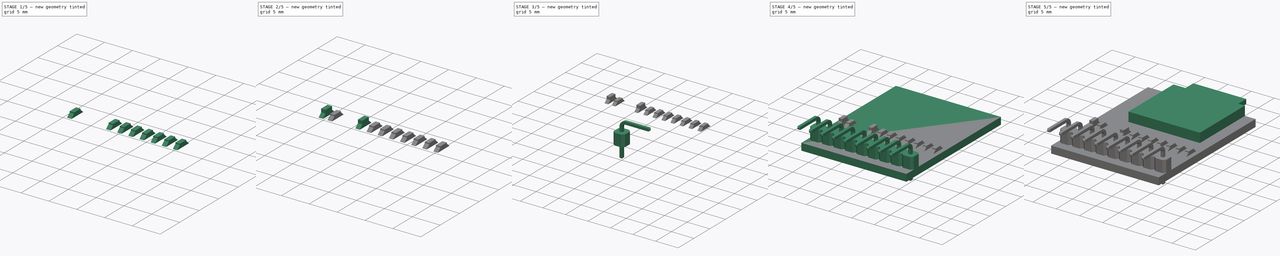
[diagram: build sequence overview — one tinted view per stage of 5, left to right]
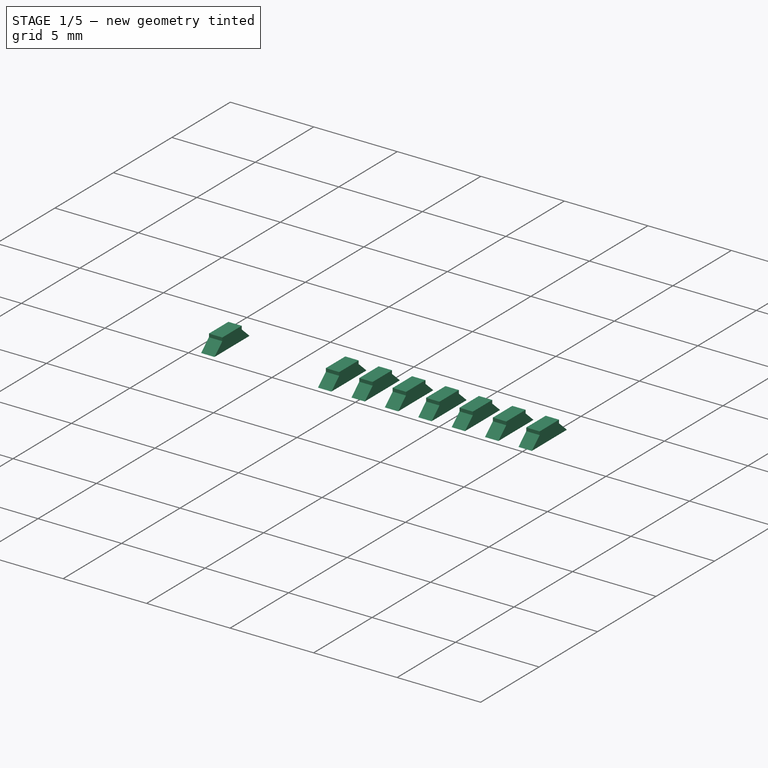
[diagram: stage 1 of 5 — iso view after this stage's code; geometry added in this stage tinted green]
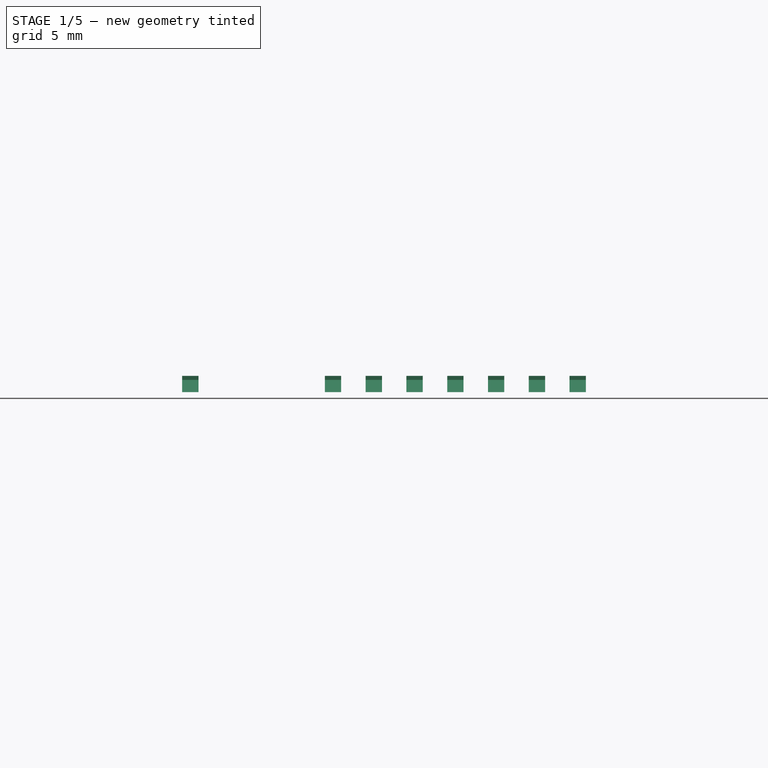
[diagram: stage 1 of 5 — front view after this stage's code; geometry added in this stage tinted green]
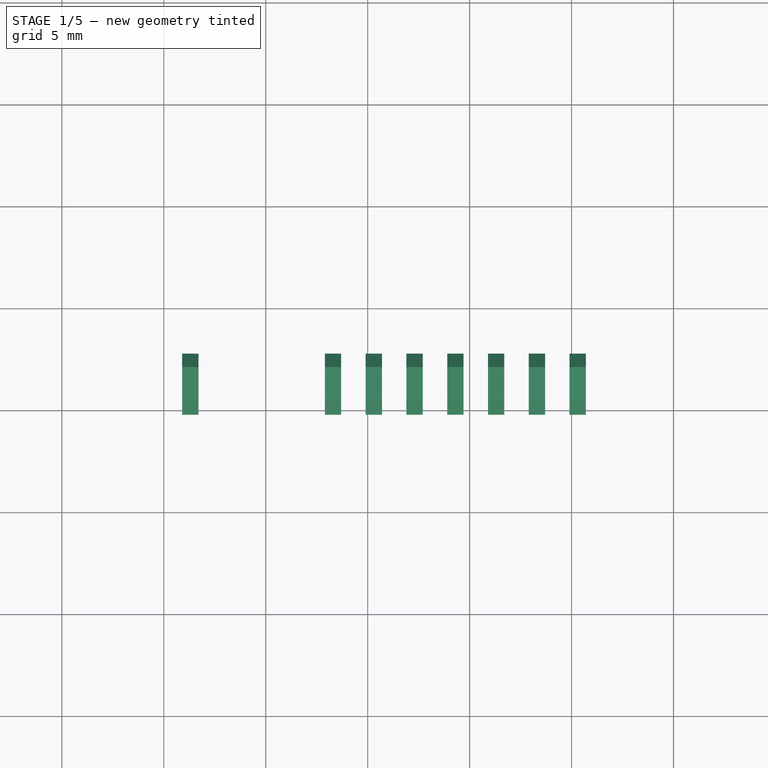
[diagram: stage 1 of 5 — top view after this stage's code; geometry added in this stage tinted green]
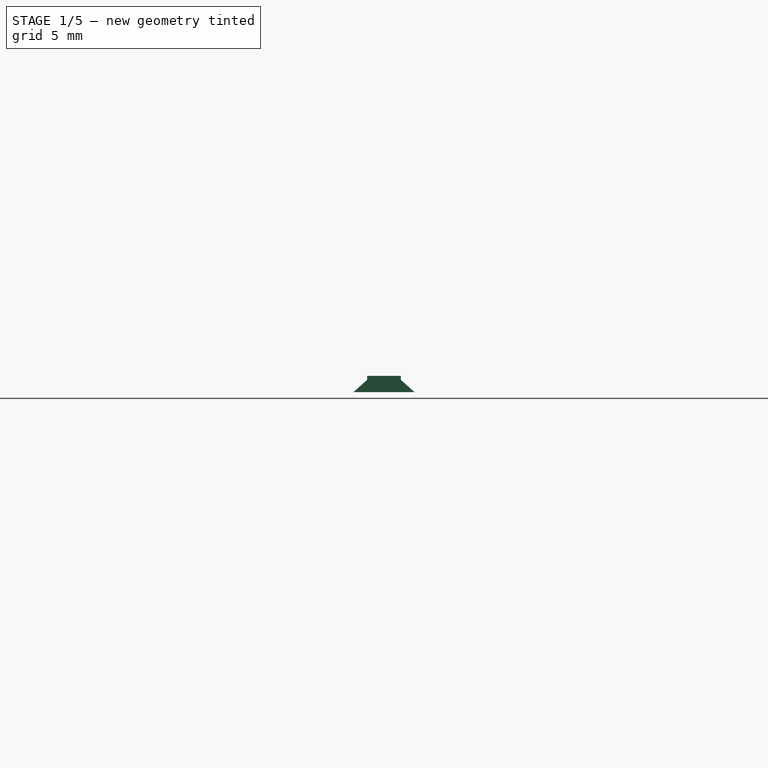
[diagram: stage 1 of 5 — right view after this stage's code; geometry added in this stage tinted green]
FCSTD DOCUMENT  (FreeCAD 0.16RUnknown)
Label: WaveShareSD
License: All rights reserved
LicenseURL: http://en.wikipedia.org/wiki/All_rights_reserved
objects: Sketcher::SketchObject×9, Part::FeaturePython×8, PartDesign::Pad×7, App::DocumentObjectGroup×6, Part::Chamfer×2, Part::MultiFuse×2, Spreadsheet::Sheet×1, Part::Sweep×1
note: 36 computed .brp shape members not serialized (recipe doc carries the construction recipe); baked Part::Feature solids carry a one-line shape summary decoded from their .brp

FEATURE [App::DocumentObjectGroup] Group002  label="Pins_src"
  Group = -> [Sketch,Pad,Sketch002,Sweep,Fusion,Array]
FEATURE [Sketcher::SketchObject] Sketch003  label="SMDR"
  Placement = pos=(0,0,0) rot=(0.57735,0.57735,0.57735;2.0944rad)
  sketch-geometry (6):
    g0: LineSegment StartX=-1.5 StartY=0 StartZ=0 EndX=1.5 EndY=0 EndZ=0
    g1: LineSegment StartX=1.5 StartY=0 StartZ=0 EndX=0.83 EndY=0.6 EndZ=0
    g2: LineSegment StartX=0.83 StartY=0.6 StartZ=0 EndX=0.83 EndY=0.8 EndZ=0
    g3: LineSegment StartX=0.83 StartY=0.8 StartZ=0 EndX=-0.83 EndY=0.8 EndZ=0
    g4: LineSegment StartX=-0.83 StartY=0.8 StartZ=0 EndX=-0.83 EndY=0.6 EndZ=0
    g5: LineSegment StartX=-0.83 StartY=0.6 StartZ=0 EndX=-1.5 EndY=0 EndZ=0
  constraints (17):
    c: Coincident(g0,g1)
    c: Coincident(g1,g2)
    c: Coincident(g2,g3)
    c: Coincident(g3,g4)
    c: Coincident(g4,g5)
    c: Coincident(g5,g0)
    c: DistanceX(g3,g3) = 1.66
    c: Vertical(g2)
    c: Vertical(g4)
    c: Symmetric(g3,g2,g-2)
    c: Horizontal(g0)
    c: PointOnObject(g0,g-1)
    c: Symmetric(g4,g1,g-2)
    c: Symmetric(g0,g0,g-2)
    c: DistanceX(g0,g0) = 3
    c: DistanceY(g2) = 0.8
    c: DistanceY(g4) = 0.6
FEATURE [PartDesign::Pad] Pad001  label="SMDR001"
  Length = 0.8
  Length2 = 100
  Midplane = true
  Placement = pos=(0,0,0) rot=(0.57735,0.57735,0.57735;2.0944rad)
  Sketch = -> Sketch003
  Type = 0
FEATURE [Part::FeaturePython] Clone003  label="Clone of SMDR001"  # Draft clone (typed FeaturePython)
  Objects = -> [Pad001]
  Placement = pos=(10.3,11.3,1.55) rot=(0.57735,0.57735,0.57735;2.0944rad)
  Scale = (1,1,1)
FEATURE [Part::FeaturePython] Array001  label="Resistors"  # Draft array (typed FeaturePython)
  Angle = 360
  ArrayType = 0
  Axis = (0,0,1)
  Base = -> Clone003
  Center = (0,0,0)
  Fuse = false
  IntervalAxis = (0,0,0)
  IntervalX = (-2,0,0)
  IntervalY = (0,1,0)
  IntervalZ = (0,0,0)
  NumberPolar = 1
  NumberX = 7
  NumberY = 1
  NumberZ = 1
FEATURE [Part::FeaturePython] Clone004  label="Clone of SMDR002"  # Draft clone (typed FeaturePython)
  Objects = -> [Pad001]
  Placement = pos=(-8.7,11.3,1.55) rot=(0.57735,0.57735,0.57735;2.0944rad)
  Scale = (1,1,1)
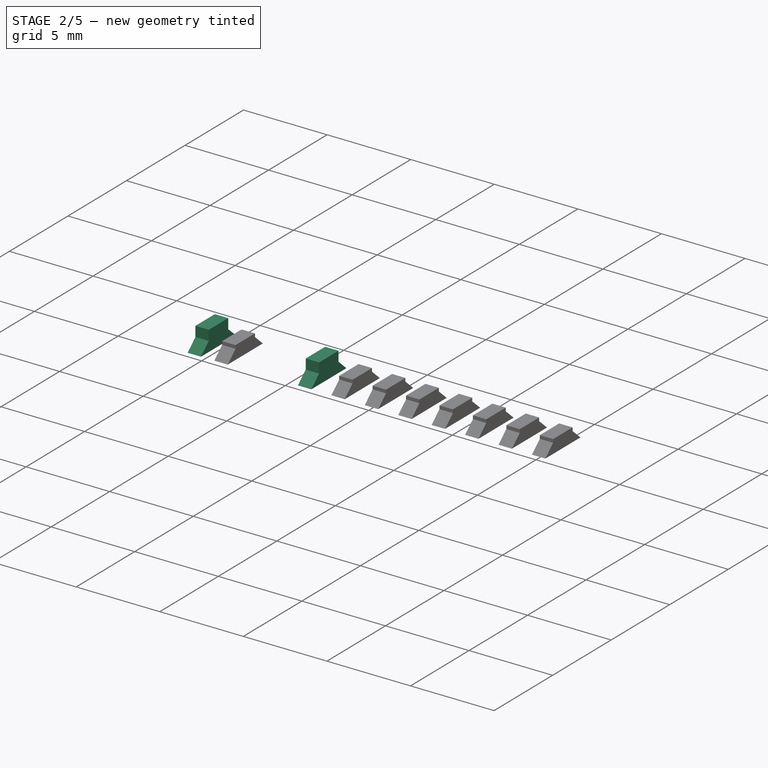
[diagram: stage 2 of 5 — iso view after this stage's code; geometry added in this stage tinted green]
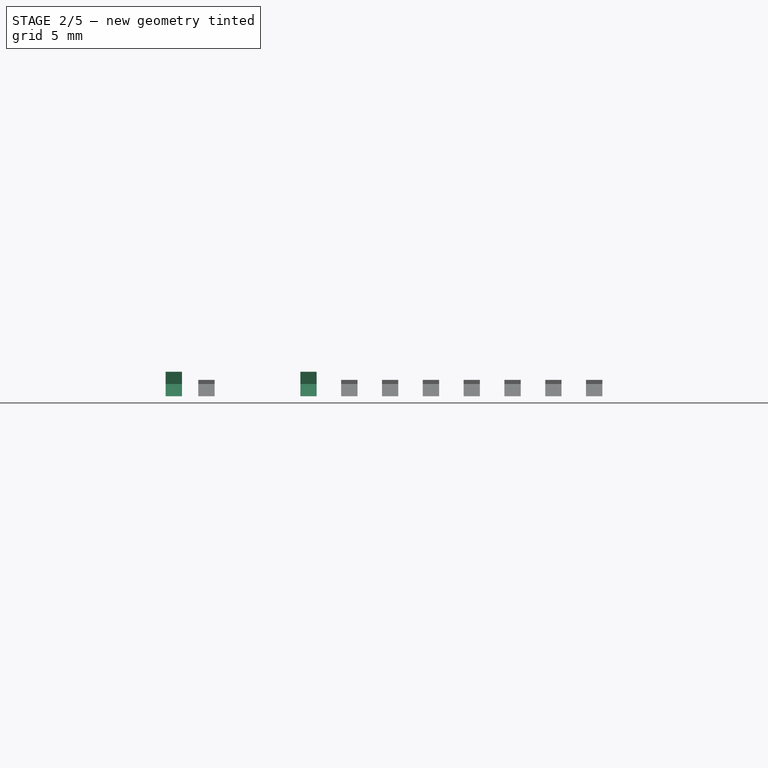
[diagram: stage 2 of 5 — front view after this stage's code; geometry added in this stage tinted green]
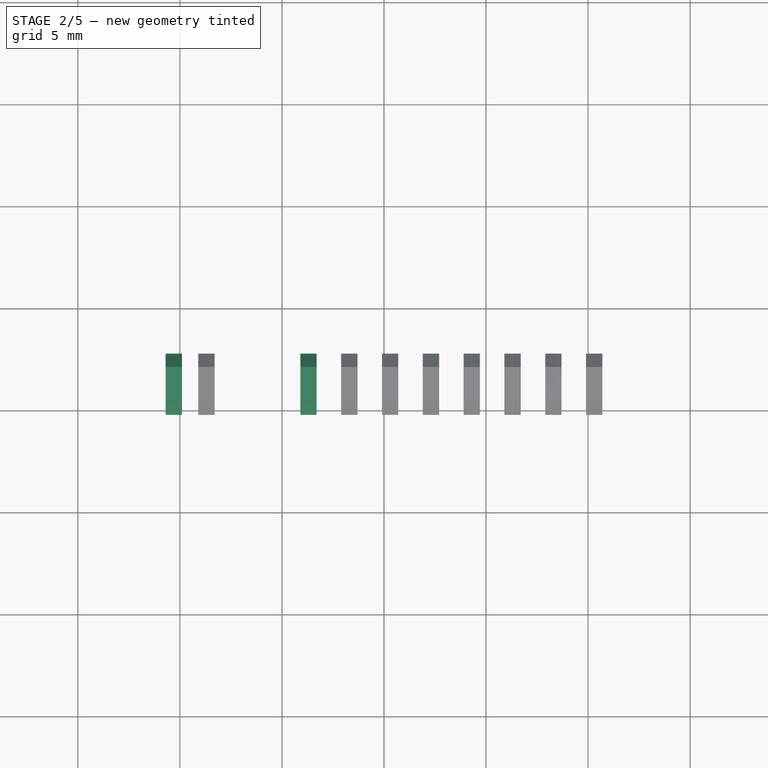
[diagram: stage 2 of 5 — top view after this stage's code; geometry added in this stage tinted green]
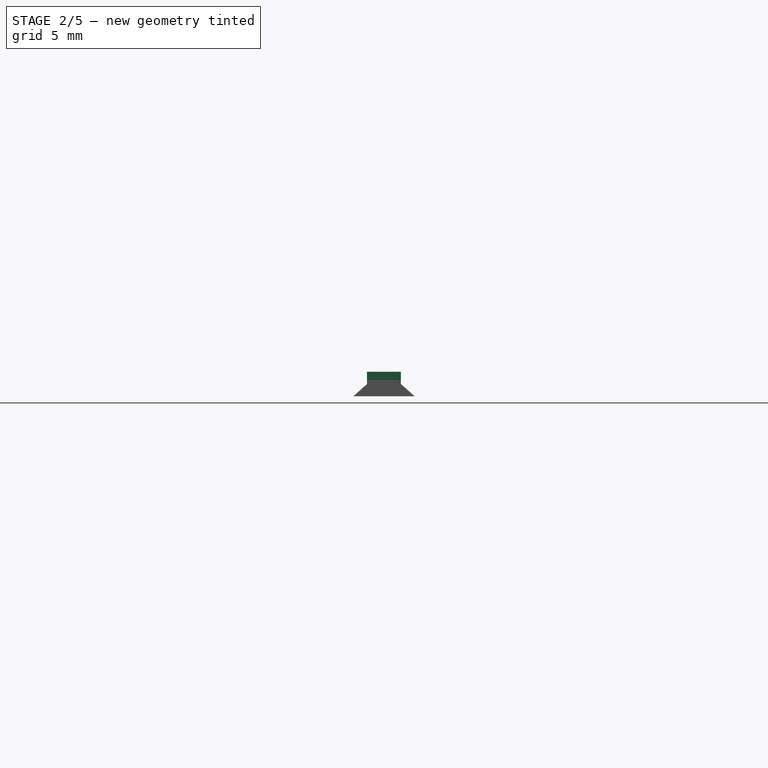
[diagram: stage 2 of 5 — right view after this stage's code; geometry added in this stage tinted green]
FEATURE [App::DocumentObjectGroup] Group003  label="SMDR_src"
  Group = -> [Pad001]
FEATURE [Sketcher::SketchObject] Sketch004  label="SMDC"
  Placement = pos=(0,0,0) rot=(0.57735,0.57735,0.57735;2.0944rad)
  sketch-geometry (6):
    g0: LineSegment StartX=-1.5 StartY=0 StartZ=0 EndX=1.5 EndY=0 EndZ=0
    g1: LineSegment StartX=1.5 StartY=0 StartZ=0 EndX=0.83 EndY=0.6 EndZ=0
    g2: LineSegment StartX=0.83 StartY=0.6 StartZ=0 EndX=0.83 EndY=1.2 EndZ=0
    g3: LineSegment StartX=0.83 StartY=1.2 StartZ=0 EndX=-0.83 EndY=1.2 EndZ=0
    g4: LineSegment StartX=-0.83 StartY=1.2 StartZ=0 EndX=-0.83 EndY=0.6 EndZ=0
    g5: LineSegment StartX=-0.83 StartY=0.6 StartZ=0 EndX=-1.5 EndY=0 EndZ=0
  constraints (17):
    c: Coincident(g0,g1)
    c: Coincident(g1,g2)
    c: Coincident(g2,g3)
    c: Coincident(g3,g4)
    c: Coincident(g4,g5)
    c: Coincident(g5,g0)
    c: DistanceX(g3,g3) = 1.66
    c: Vertical(g2)
    c: Vertical(g4)
    c: Symmetric(g3,g2,g-2)
    c: Horizontal(g0)
    c: PointOnObject(g0,g-1)
    c: Symmetric(g4,g1,g-2)
    c: Symmetric(g0,g0,g-2)
    c: DistanceX(g0,g0) = 3
    c: DistanceY(g2) = 1.2
    c: DistanceY(g4) = 0.6
FEATURE [Sketcher::SketchObject] Sketch005  label="SMDLED"
  Placement = pos=(0,0,0) rot=(0.57735,0.57735,0.57735;2.0944rad)
  sketch-geometry (6):
    g0: LineSegment StartX=-1.5 StartY=0 StartZ=0 EndX=1.5 EndY=0 EndZ=0
    g1: LineSegment StartX=1.5 StartY=0 StartZ=0 EndX=0.83 EndY=0.6 EndZ=0
    g2: LineSegment StartX=0.83 StartY=0.6 StartZ=0 EndX=0.83 EndY=1.2 EndZ=0
    g3: LineSegment StartX=0.83 StartY=1.2 StartZ=0 EndX=-0.83 EndY=1.2 EndZ=0
    g4: LineSegment StartX=-0.83 StartY=1.2 StartZ=0 EndX=-0.83 EndY=0.6 EndZ=0
    g5: LineSegment StartX=-0.83 StartY=0.6 StartZ=0 EndX=-1.5 EndY=0 EndZ=0
  constraints (17):
    c: Coincident(g0,g1)
    c: Coincident(g1,g2)
    c: Coincident(g2,g3)
    c: Coincident(g3,g4)
    c: Coincident(g4,g5)
    c: Coincident(g5,g0)
    c: DistanceX(g3,g3) = 1.66
    c: Vertical(g2)
    c: Vertical(g4)
    c: Symmetric(g3,g2,g-2)
    c: Horizontal(g0)
    c: PointOnObject(g0,g-1)
    c: Symmetric(g4,g1,g-2)
    c: Symmetric(g0,g0,g-2)
    c: DistanceX(g0,g0) = 3
    c: DistanceY(g2) = 1.2
    c: DistanceY(g4) = 0.6
FEATURE [PartDesign::Pad] Pad002  label="SMDC001"
  Length = 0.8
  Length2 = 100
  Midplane = true
  Placement = pos=(0,0,0) rot=(0.57735,0.57735,0.57735;2.0944rad)
  Sketch = -> Sketch004
  Type = 0
FEATURE [App::DocumentObjectGroup] Group004  label="SMDC_src"
  Group = -> [Pad002]
FEATURE [PartDesign::Pad] Pad003  label="SMDLED001"
  Length = 0.8
  Length2 = 100
  Midplane = true
  Placement = pos=(0,0,0) rot=(0.57735,0.57735,0.57735;2.0944rad)
  Sketch = -> Sketch005
  Type = 0
FEATURE [Part::FeaturePython] Clone001  label="Clone of SMDC001"  # Draft clone (typed FeaturePython)
  Objects = -> [Pad002]
  Placement = pos=(-3.7,11.3,1.55) rot=(0.57735,0.57735,0.57735;2.0944rad)
  Scale = (1,1,1)
FEATURE [Part::FeaturePython] Clone002  label="Clone of SMDLED001"  # Draft clone (typed FeaturePython)
  Objects = -> [Pad003]
  Placement = pos=(-10.3,11.3,1.55) rot=(0.57735,0.57735,0.57735;2.0944rad)
  Scale = (1,1,1)
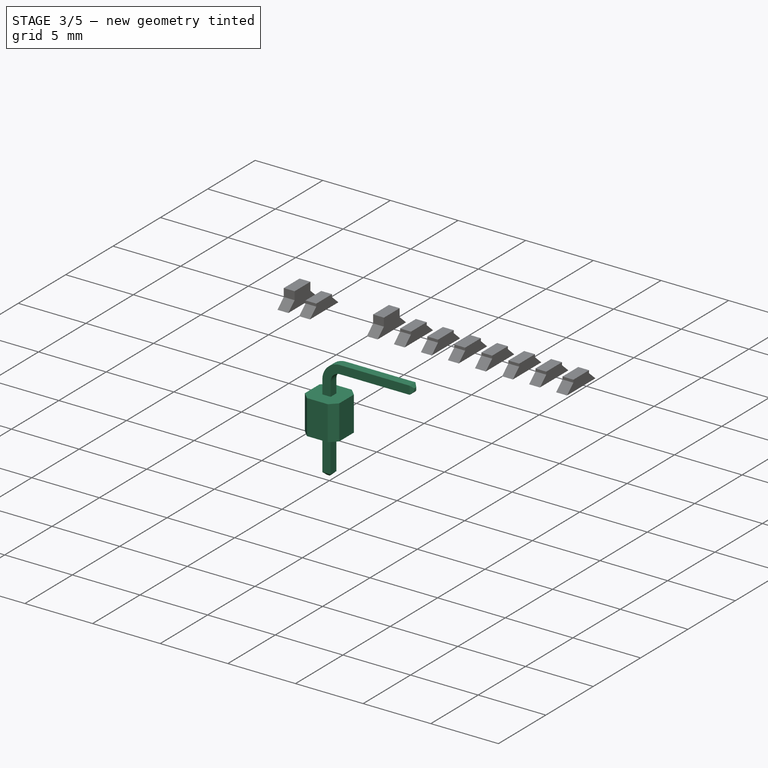
[diagram: stage 3 of 5 — iso view after this stage's code; geometry added in this stage tinted green]
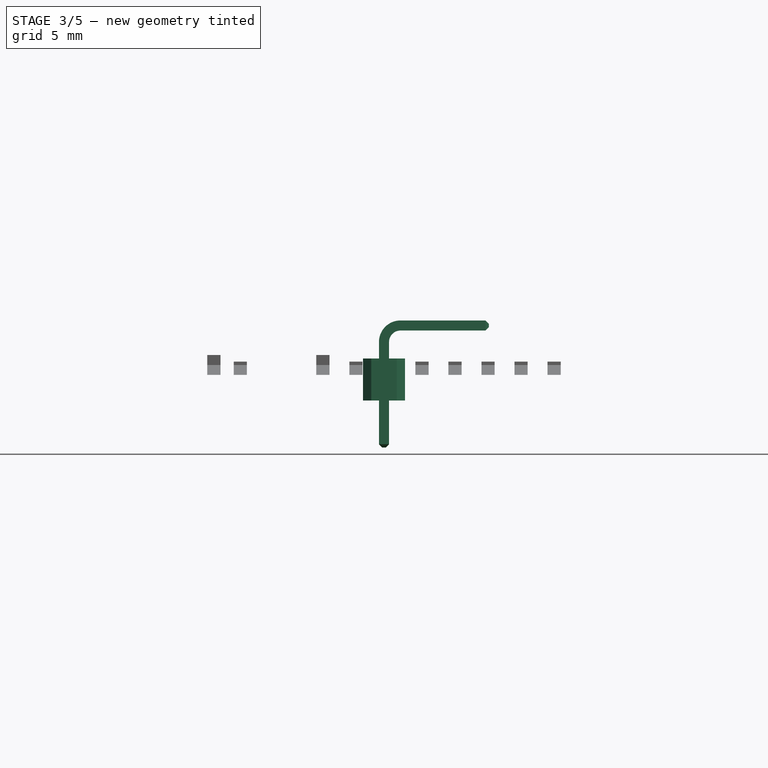
[diagram: stage 3 of 5 — front view after this stage's code; geometry added in this stage tinted green]
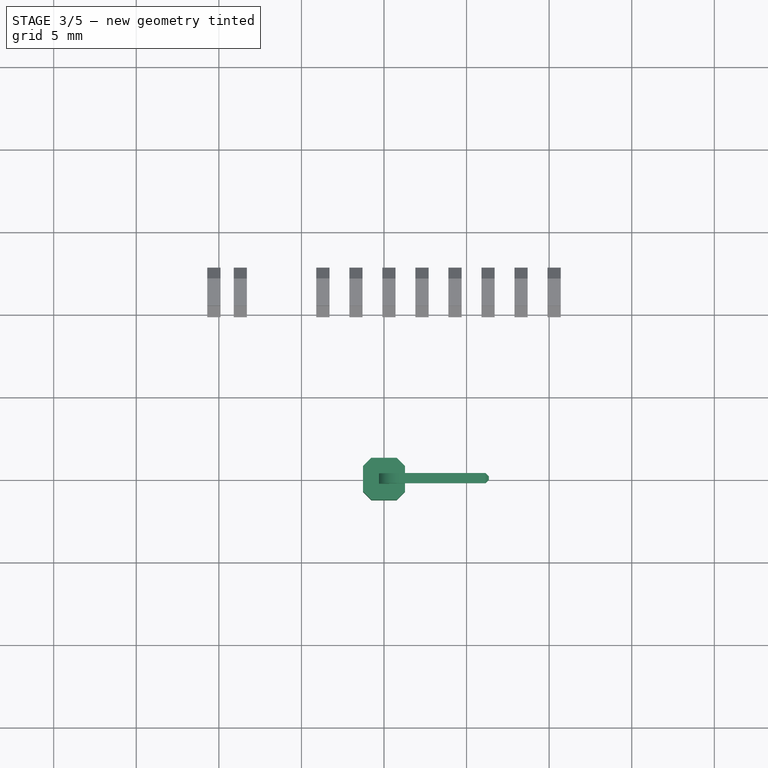
[diagram: stage 3 of 5 — top view after this stage's code; geometry added in this stage tinted green]
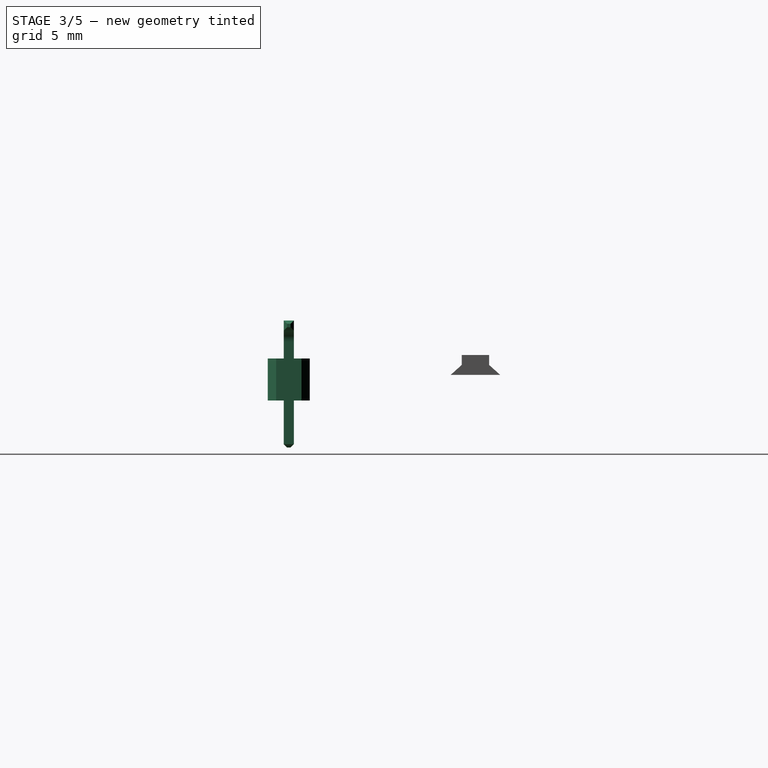
[diagram: stage 3 of 5 — right view after this stage's code; geometry added in this stage tinted green]
FEATURE [Spreadsheet::Sheet] Spreadsheet  label="pars"
  cells = A1=Bolts and Nuts; B1=Value; D1=Components; E1=Value; A2=Thread Tight Tolerance (Radius, ratio); B2(ThrTighRatio)=0.96; D2=Tight Cilinder Tolerances (Radius, mm); E2(CilTight)=0.1; A3=Thread Tight Tolerance (Radius, mm); B3(ThrTightmm)=0.1; D3=Loose Cilinder Tolerances (Radius, mm); E3(CilLoose)=0.1; A5=Nut Slot Width Clearance (mm); B5(NutWidthClearmm)=0.1; A6=Nut Slot Thickess Clearance (mm); B6(NutThickClearmm)=0.1; A13=Particular parameters; B13=Value
FEATURE [Sketcher::SketchObject] Sketch  label="PinSection"
  sketch-geometry (4):
    g0: LineSegment StartX=-0.305 StartY=0.305 StartZ=0 EndX=0.305 EndY=0.305 EndZ=0
    g1: LineSegment StartX=0.305 StartY=0.305 StartZ=0 EndX=0.305 EndY=-0.305 EndZ=0
    g2: LineSegment StartX=0.305 StartY=-0.305 StartZ=0 EndX=-0.305 EndY=-0.305 EndZ=0
    g3: LineSegment StartX=-0.305 StartY=-0.305 StartZ=0 EndX=-0.305 EndY=0.305 EndZ=0
  constraints (11):
    c: Coincident(g0,g1)
    c: Coincident(g1,g2)
    c: Coincident(g2,g3)
    c: Coincident(g3,g0)
    c: Horizontal(g0)
    c: Horizontal(g2)
    c: Vertical(g1)
    c: Vertical(g3)
    c: Symmetric(g0,g1,g-1)
    c: DistanceY(g1,g1) = 0.61
    c: DistanceX(g0,g0) = 0.61
FEATURE [Sketcher::SketchObject] Sketch001  label="PinPlastic"
  sketch-geometry (4):
    g0: LineSegment StartX=-1.27 StartY=1.27 StartZ=0 EndX=1.27 EndY=1.27 EndZ=0
    g1: LineSegment StartX=1.27 StartY=1.27 StartZ=0 EndX=1.27 EndY=-1.27 EndZ=0
    g2: LineSegment StartX=1.27 StartY=-1.27 StartZ=0 EndX=-1.27 EndY=-1.27 EndZ=0
    g3: LineSegment StartX=-1.27 StartY=-1.27 StartZ=0 EndX=-1.27 EndY=1.27 EndZ=0
  constraints (11):
    c: Coincident(g0,g1)
    c: Coincident(g1,g2)
    c: Coincident(g2,g3)
    c: Coincident(g3,g0)
    c: Horizontal(g0)
    c: Horizontal(g2)
    c: Vertical(g1)
    c: Vertical(g3)
    c: Equal(g0,g1)
    c: Symmetric(g0,g1,g-1)
    c: DistanceX(g0,g0) = 2.54
FEATURE [PartDesign::Pad] Pad  label="PinPlastic001"
  Length = 2.54
  Length2 = 100
  Sketch = -> Sketch001
  Type = 0
FEATURE [Part::Chamfer] Chamfer  label="PinPlastic002"
  Base = -> Pad
  Edges = 4 edges r=0.5: [Edge1,Edge2,Edge5,Edge8]
FEATURE [Sketcher::SketchObject] Sketch002  label="PinPath"
  Placement = pos=(0,0,0) rot=(-1,0,0;4.71239rad)
  sketch-geometry (3):
    g0: LineSegment StartX=0 StartY=3.53999 StartZ=0 EndX=0 EndY=-2.85 EndZ=0
    g1: LineSegment StartX=0.999999 StartY=4.54 StartZ=0 EndX=6.35 EndY=4.54 EndZ=0
    g2: ArcOfCircle CenterX=1 CenterY=3.54 CenterZ=0 NormalX=0 NormalY=0 NormalZ=1 Radius=1 StartAngle=1.5708 EndAngle=3.1416
  constraints (11):
    c: Horizontal(g1)
    c: Vertical(g0)
    c: Coincident(g2,g0)
    c: Coincident(g2,g1)
    c: PointOnObject(g0,g-2)
    c: Tangent(g2,g0)
    c: Tangent(g2,g1)
    c: DistanceY(g0) = -2.85
    c: DistanceX(g1) = 6.35
    c: Radius(g2) = 1
    c: DistanceY(g1) = 4.54
FEATURE [Part::Sweep] Sweep  label="PinSweep"
  Frenet = false
  Sections = -> [Sketch]
  Solid = true
  Spine = -> Sketch002 [Edge3,Edge2,Edge1]
  Transition = 1
FEATURE [Part::Chamfer] Chamfer001  label="PinMetal"
  Base = -> Sweep
  Edges = 8 edges r=0.2: [Edge2,Edge5,Edge8,Edge11,Edge23,Edge25,Edge27,Edge28]
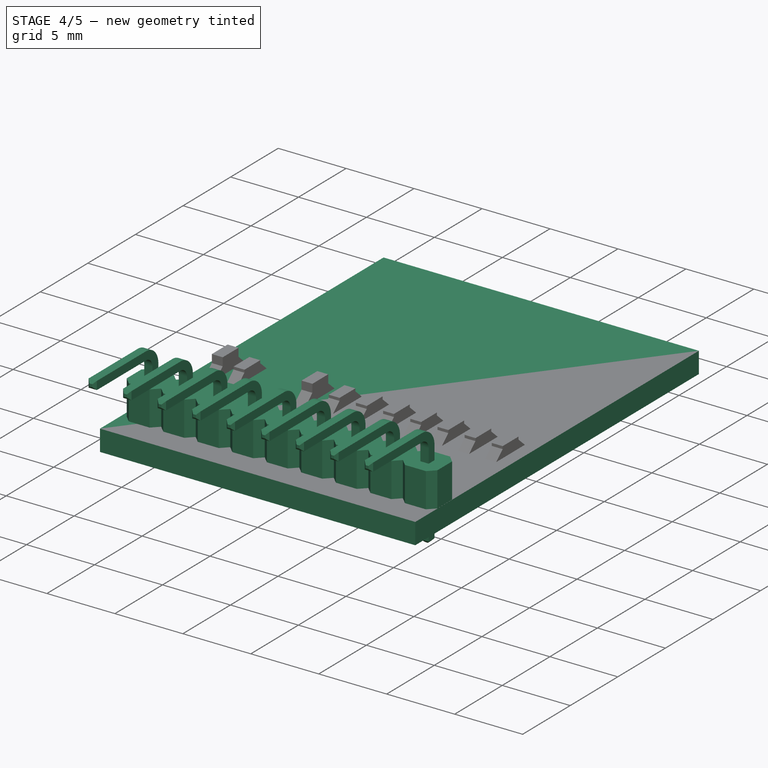
[diagram: stage 4 of 5 — iso view after this stage's code; geometry added in this stage tinted green]
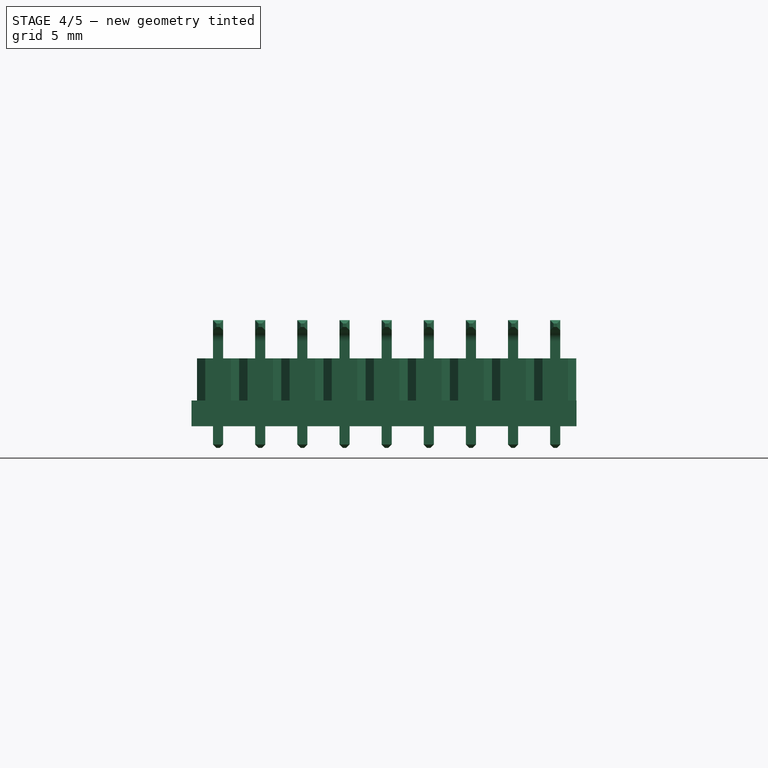
[diagram: stage 4 of 5 — front view after this stage's code; geometry added in this stage tinted green]
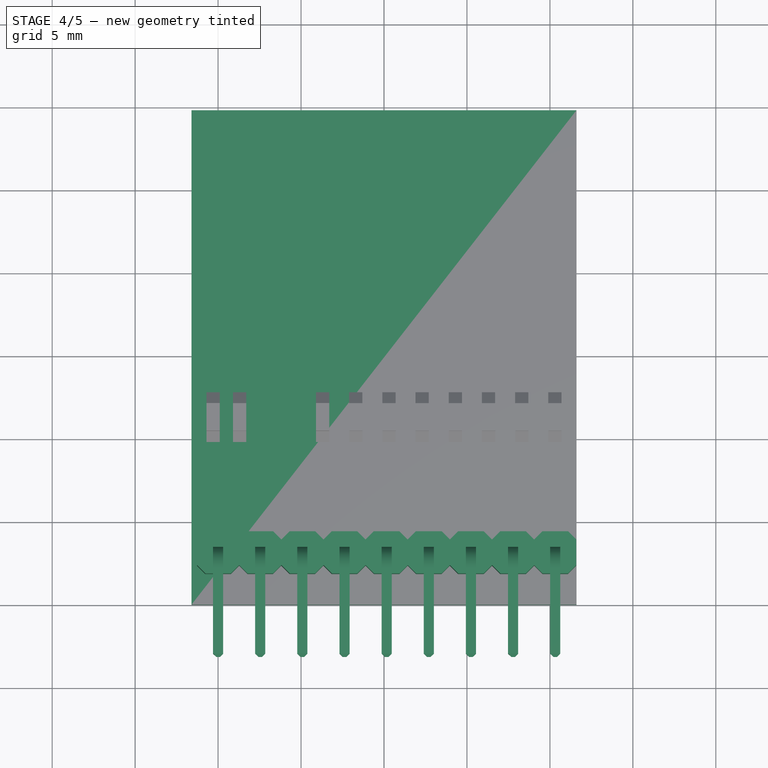
[diagram: stage 4 of 5 — top view after this stage's code; geometry added in this stage tinted green]
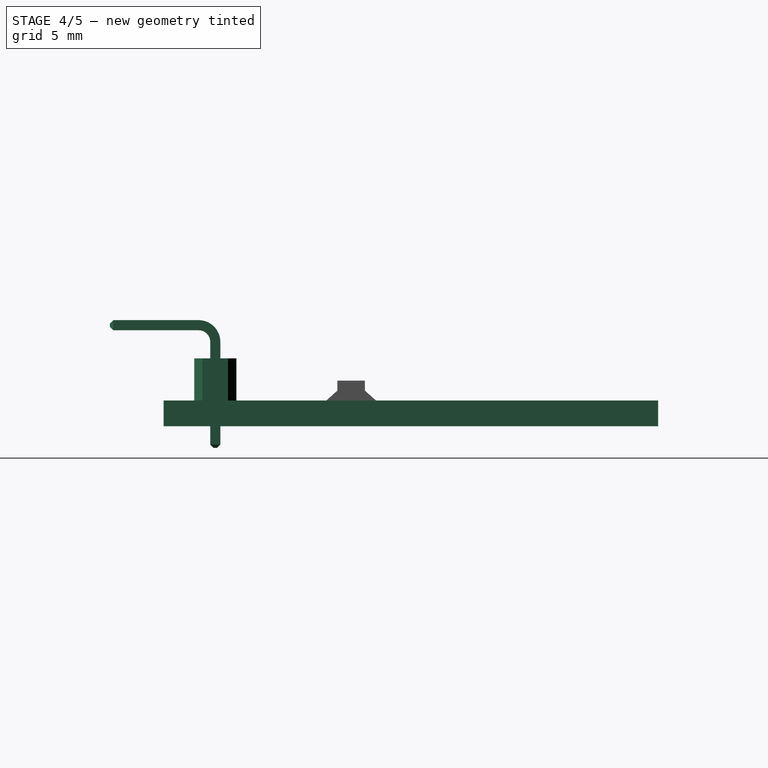
[diagram: stage 4 of 5 — right view after this stage's code; geometry added in this stage tinted green]
FEATURE [Part::MultiFuse] Fusion  label="Pin"
  Shapes = -> [Chamfer,Chamfer001]
FEATURE [Part::FeaturePython] Array  label="Pins"  # Draft array (typed FeaturePython)
  Angle = 360
  ArrayType = 0
  Axis = (0,0,1)
  Base = -> Fusion
  Center = (0,0,0)
  Fuse = true
  IntervalAxis = (0,0,0)
  IntervalX = (1,0,0)
  IntervalY = (0,2.54,0)
  IntervalZ = (0,0,0)
  NumberPolar = 1
  NumberX = 1
  NumberY = 9
  NumberZ = 1
FEATURE [App::DocumentObjectGroup] Group005  label="SMDLED_src"
  Group = -> [Pad003]
FEATURE [App::DocumentObjectGroup] Group001  label="Component_src"
  Group = -> [Group002,Group003,Group004,Group005]
FEATURE [Sketcher::SketchObject] Sketch006  label="Board"
  sketch-geometry (4):
    g0: LineSegment StartX=-11.6 StartY=29.8 StartZ=0 EndX=11.6 EndY=29.8 EndZ=0
    g1: LineSegment StartX=11.6 StartY=29.8 StartZ=0 EndX=11.6 EndY=0 EndZ=0
    g2: LineSegment StartX=11.6 StartY=0 StartZ=0 EndX=-11.6 EndY=0 EndZ=0
    g3: LineSegment StartX=-11.6 StartY=0 StartZ=0 EndX=-11.6 EndY=29.8 EndZ=0
  constraints (12):
    c: Coincident(g0,g1)
    c: Coincident(g1,g2)
    c: Coincident(g2,g3)
    c: Coincident(g3,g0)
    c: Horizontal(g0)
    c: Horizontal(g2)
    c: Vertical(g1)
    c: Vertical(g3)
    c: Symmetric(g0,g0,g-2)
    c: PointOnObject(g1,g-1)
    c: DistanceX(g2,g2) = 23.2
    c: DistanceY(g1,g1) = 29.8
FEATURE [PartDesign::Pad] Pad004  label="Board001"
  Length = 1.55
  Length2 = 100
  Sketch = -> Sketch006
  Type = 0
FEATURE [Part::FeaturePython] Clone  label="Clone of Pins"  # Draft clone (typed FeaturePython)
  Objects = -> [Array]
  Placement = pos=(-10,3.11,1.55) rot=(0,0,-1;1.5708rad)
  Scale = (1,1,1)
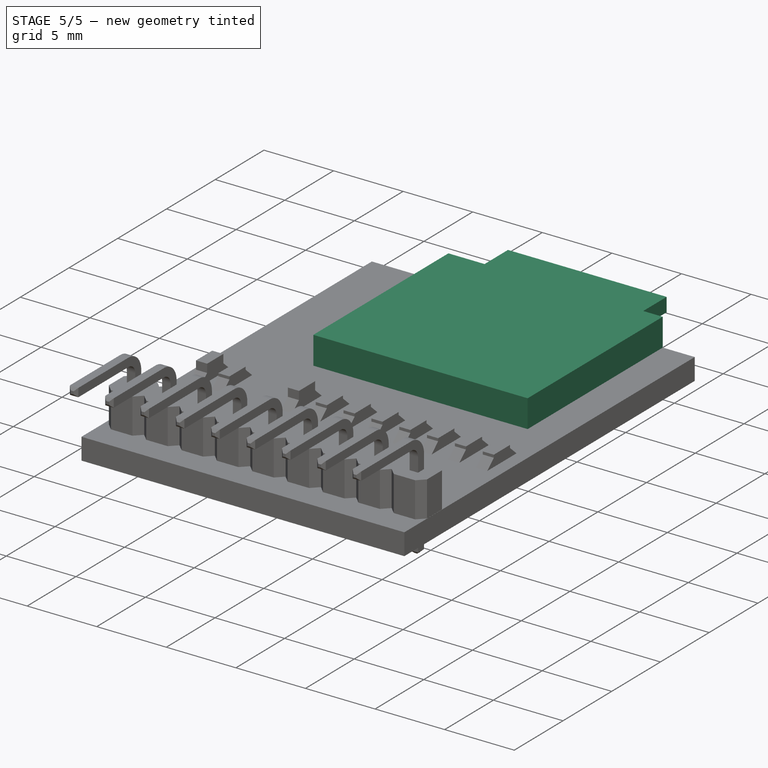
[diagram: stage 5 of 5 — iso view after this stage's code; geometry added in this stage tinted green]
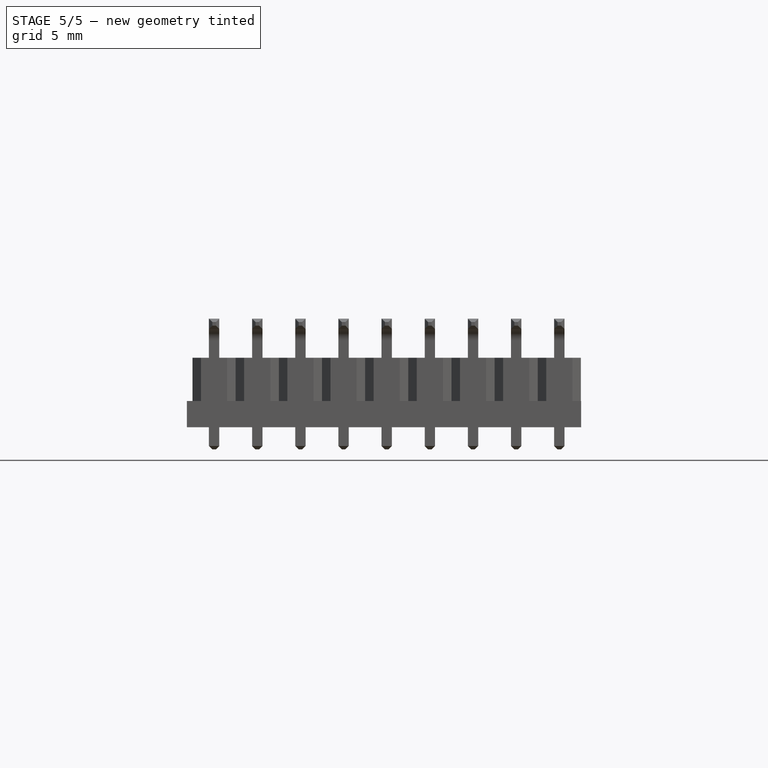
[diagram: stage 5 of 5 — front view after this stage's code; geometry added in this stage tinted green]
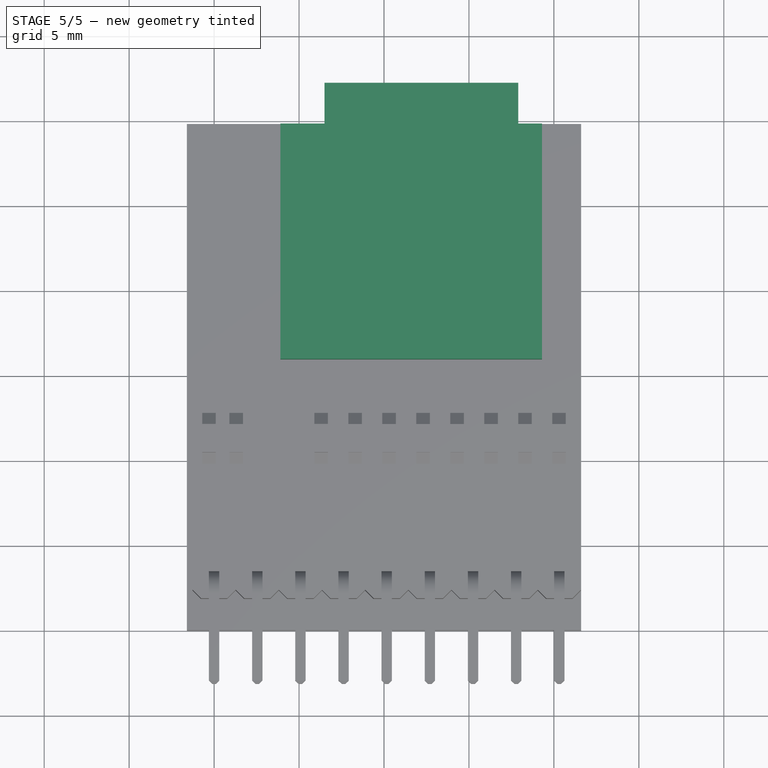
[diagram: stage 5 of 5 — top view after this stage's code; geometry added in this stage tinted green]
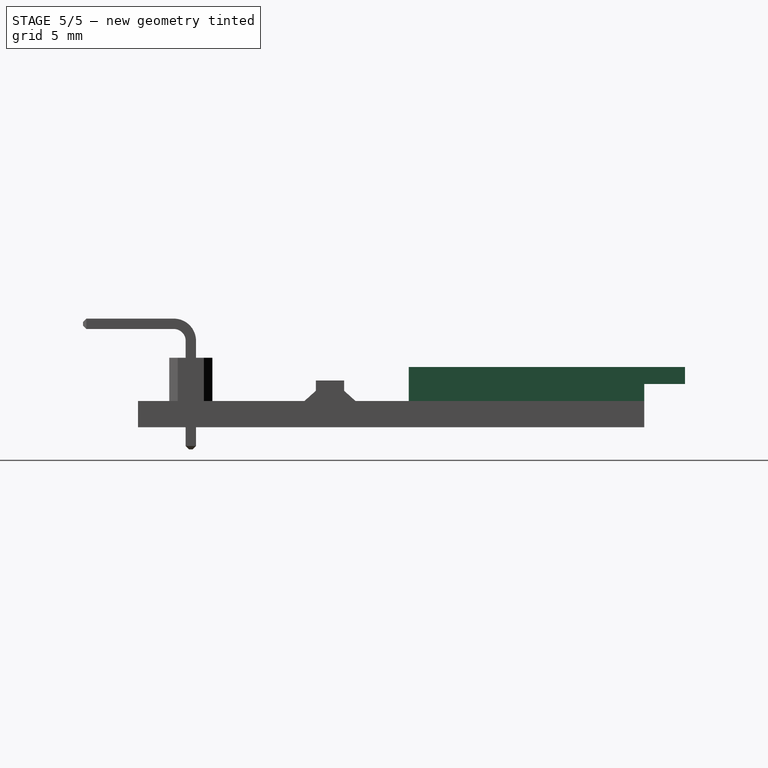
[diagram: stage 5 of 5 — right view after this stage's code; geometry added in this stage tinted green]
FEATURE [Sketcher::SketchObject] Sketch007  label="SDSlot"
  Placement = pos=(0,0,1.55) rot=(0,0,1;0rad)
  Support = -> Pad004 [Face6]
  sketch-geometry (4):
    g0: LineSegment StartX=-6.1 StartY=29.8 StartZ=0 EndX=9.3 EndY=29.8 EndZ=0
    g1: LineSegment StartX=9.3 StartY=29.8 StartZ=0 EndX=9.3 EndY=15.94 EndZ=0
    g2: LineSegment StartX=9.3 StartY=15.94 StartZ=0 EndX=-6.1 EndY=15.94 EndZ=0
    g3: LineSegment StartX=-6.1 StartY=15.94 StartZ=0 EndX=-6.1 EndY=29.8 EndZ=0
  constraints (12):
    c: Coincident(g0,g1)
    c: Coincident(g1,g2)
    c: Coincident(g2,g3)
    c: Coincident(g3,g0)
    c: Horizontal(g0)
    c: Horizontal(g2)
    c: Vertical(g1)
    c: Vertical(g3)
    c: DistanceX(g0) = 9.3
    c: DistanceX(g0) = -6.1
    c: DistanceY(g1,g1) = 13.86
    c: DistanceY(g0) = 29.8
FEATURE [PartDesign::Pad] Pad005  label="SDSlot001"
  Length = 2
  Length2 = 100
  Sketch = -> Sketch007
  Type = 0
FEATURE [Sketcher::SketchObject] Sketch008  label="SD"
  Placement = pos=(0,0,3.55) rot=(0,0,1;0rad)
  Support = -> Pad005 [Face9]
  sketch-geometry (4):
    g0: LineSegment StartX=-3.5 StartY=32.2 StartZ=0 EndX=7.9 EndY=32.2 EndZ=0
    g1: LineSegment StartX=7.9 StartY=32.2 StartZ=0 EndX=7.9 EndY=29 EndZ=0
    g2: LineSegment StartX=7.9 StartY=29 StartZ=0 EndX=-3.5 EndY=29 EndZ=0
    g3: LineSegment StartX=-3.5 StartY=29 StartZ=0 EndX=-3.5 EndY=32.2 EndZ=0
  constraints (12):
    c: Coincident(g0,g1)
    c: Coincident(g1,g2)
    c: Coincident(g2,g3)
    c: Coincident(g3,g0)
    c: Horizontal(g0)
    c: Horizontal(g2)
    c: Vertical(g1)
    c: Vertical(g3)
    c: DistanceX(g0,g0) = 11.4
    c: DistanceY(g2) = 29
    c: DistanceY(g3,g3) = 3.2
    c: DistanceX(g0) = -3.5
FEATURE [PartDesign::Pad] Pad006  label="SD001"
  Length = 1
  Length2 = 100
  Reversed = true
  Sketch = -> Sketch008
  Type = 0
FEATURE [Part::MultiFuse] Fusion001  label="ComponentFusion"
  Shapes = -> [Pad006,Clone,Clone001,Clone002,Clone004,Array001]
FEATURE [App::DocumentObjectGroup] Group  label="src"
  Group = -> [Pad004,Pad005,Fusion001]
FEATURE [Part::FeaturePython] Clone005  label="WaveShareSD"  # Draft clone (typed FeaturePython)
  Objects = -> [Fusion001]
  Scale = (1,1,1)
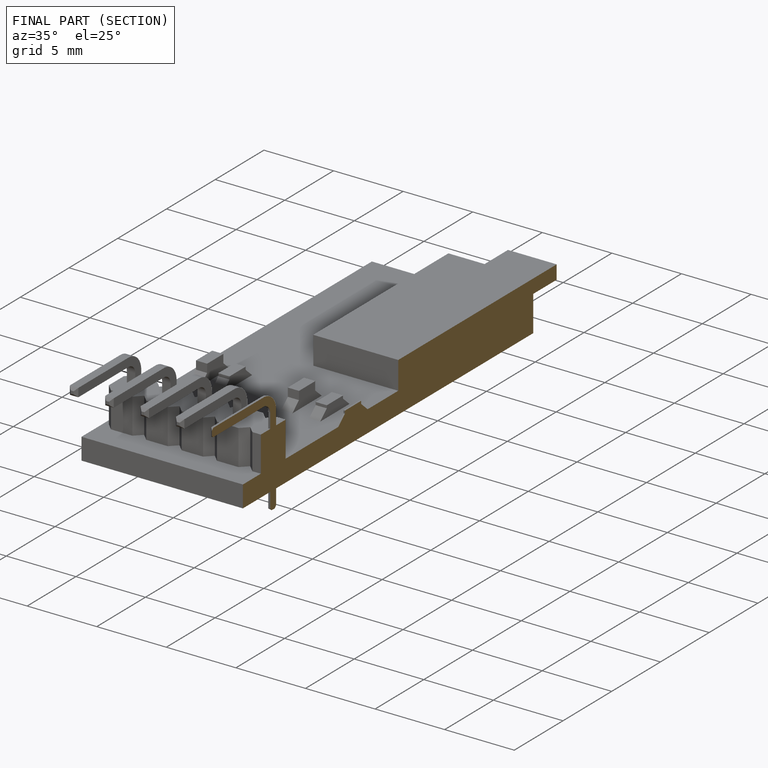
[diagram: finished part — half-section view (interior)]
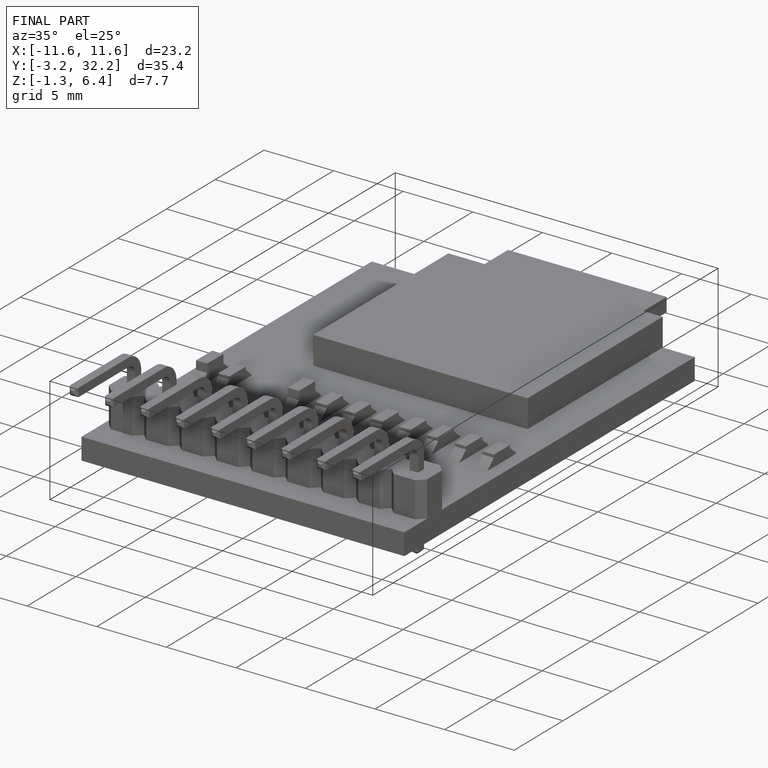
[diagram: finished part — iso view with bounding-box wireframe]
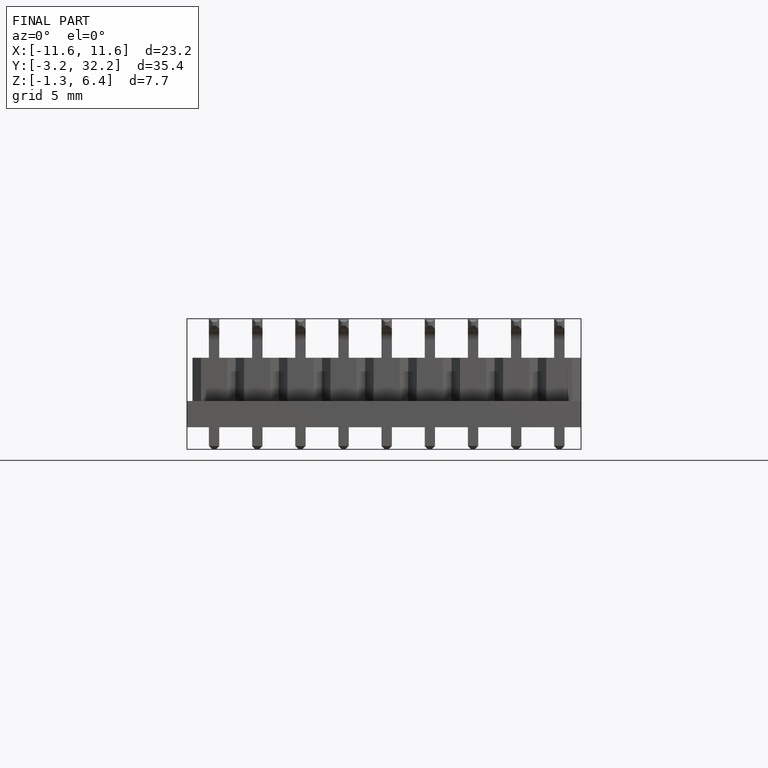
[diagram: finished part — front view with bounding-box wireframe]
